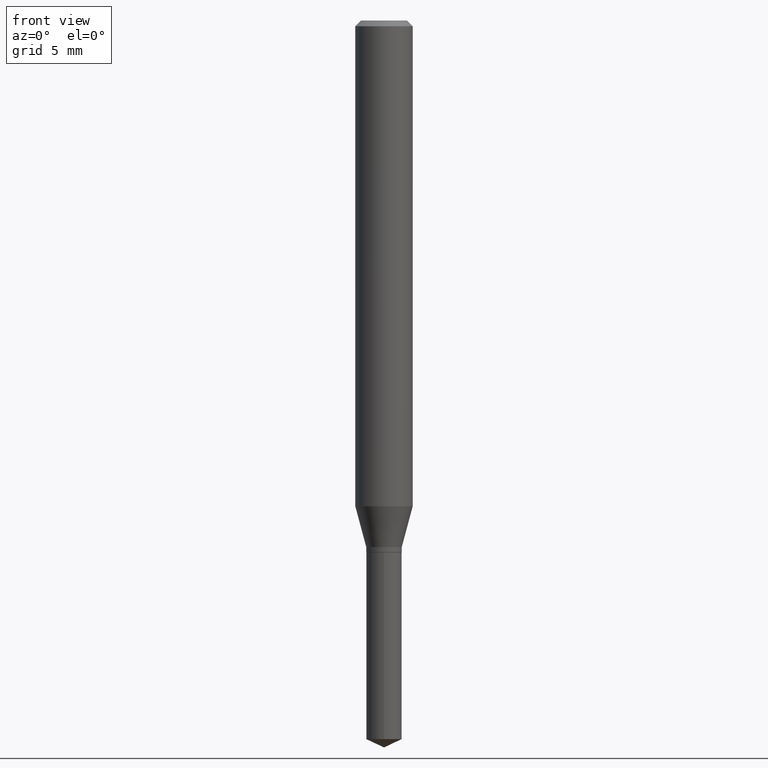
[diagram: clean part render]
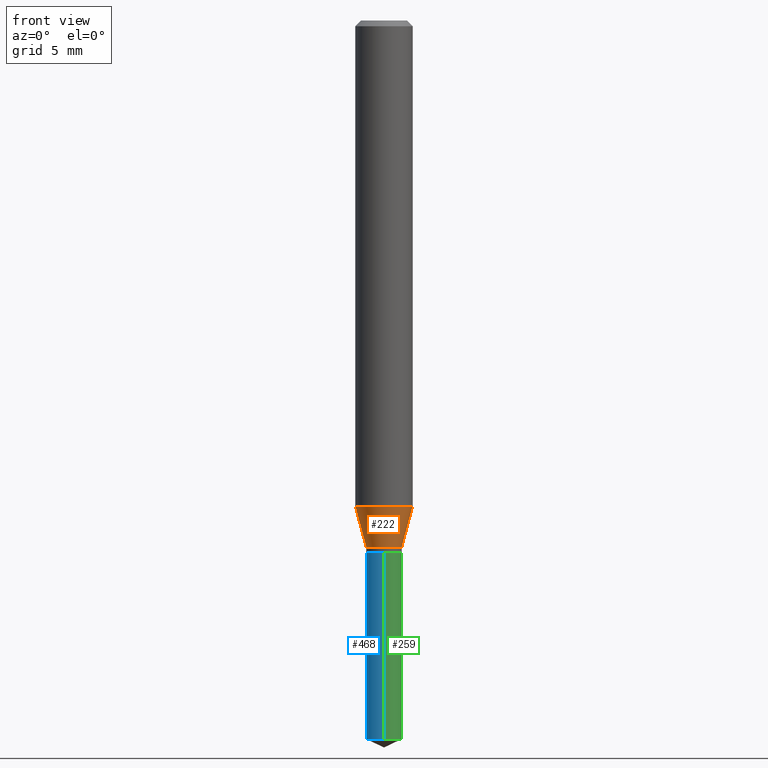
[diagram: same view with three faces highlighted in distinct colors, each labeled with its STEP entity id]
A machine part, front view with three faces highlighted in distinct colors.
Their STEP definitions:

[orange] entity #222 — the highlighted conical surface has half-angle 15 deg.
#18 = CIRCLE ( 'NONE', #280, 0.05905000000000013016 ) ;
#22 = VERTEX_POINT ( 'NONE', #318 ) ;
#42 = DIRECTION ( 'NONE',  ( 1.000000000000000000, -6.982962677686267499E-15, 0.000000000000000000 ) ) ;
#43 = CARTESIAN_POINT ( 'NONE',  ( 0.03659999999999995202, -4.038596464639864917E-15, -1.083499999999999908 ) ) ;
#70 = CARTESIAN_POINT ( 'NONE',  ( -0.03659999999999995202, -3.522961389348351691E-15, -1.083499999999999908 ) ) ;
#84 = CARTESIAN_POINT ( 'NONE',  ( 2.649665451501595207E-29, -3.783020030636548117E-15, -1.083499999999999908 ) ) ;
#85 = DIRECTION ( 'NONE',  ( 1.000000000000000000, -6.982962677686267499E-15, 0.000000000000000000 ) ) ;
#89 = EDGE_CURVE ( 'NONE', #137, #22, #18, .T. ) ;
#99 = VECTOR ( 'NONE', #166, 39.37007874015747433 ) ;
#105 = VERTEX_POINT ( 'NONE', #223 ) ;
#114 = ORIENTED_EDGE ( 'NONE', *, *, #275, .T. ) ;
#127 = CARTESIAN_POINT ( 'NONE',  ( 2.444772970950570480E-29, -3.490487870543630905E-15, -0.9997154593700782188 ) ) ;
#137 = VERTEX_POINT ( 'NONE', #212 ) ;
#166 = DIRECTION ( 'NONE',  ( 0.2588190451025214611, 1.565188264969621573E-15, 0.9659258262890682012 ) ) ;
#195 = VERTEX_POINT ( 'NONE', #43 ) ;
#197 = DIRECTION ( 'NONE',  ( -2.445468806185136597E-29, 3.491481338843145583E-15, 1.000000000000000000 ) ) ;
#201 = CARTESIAN_POINT ( 'NONE',  ( 0.03659999999999995202, -4.038596464639864917E-15, -1.083499999999999908 ) ) ;
#207 = CIRCLE ( 'NONE', #322, 0.03659999999999995202 ) ;
#212 = CARTESIAN_POINT ( 'NONE',  ( -0.05905000000000013016, -3.070912385077291412E-15, -0.9997154593700782188 ) ) ;
#220 = DIRECTION ( 'NONE',  ( -0.2588190451025214611, 5.211531920934551042E-15, 0.9659258262890682012 ) ) ;
#222 = ADVANCED_FACE ( 'NONE', ( #466 ), #299, .T. ) ;
#223 = CARTESIAN_POINT ( 'NONE',  ( -0.03659999999999995896, -3.541291666377277873E-15, -1.083499999999999908 ) ) ;
#253 = DIRECTION ( 'NONE',  ( 1.000000000000000000, -6.982962677686265133E-15, 0.000000000000000000 ) ) ;
#275 = EDGE_CURVE ( 'NONE', #195, #22, #460, .T. ) ;
#280 = AXIS2_PLACEMENT_3D ( 'NONE', #127, #366, #253 ) ;
#284 = EDGE_LOOP ( 'NONE', ( #363, #388, #114, #395 ) ) ;
#299 = CONICAL_SURFACE ( 'NONE', #384, 0.03659999999999995202, 0.2617993877991501295 ) ;
#314 = DIRECTION ( 'NONE',  ( -2.445468806185136597E-29, 3.491481338843145583E-15, 1.000000000000000000 ) ) ;
#318 = CARTESIAN_POINT ( 'NONE',  ( 0.05905000000000013016, -3.902831816661005825E-15, -0.9997154593700782188 ) ) ;
#322 = AXIS2_PLACEMENT_3D ( 'NONE', #84, #314, #42 ) ;
#349 = EDGE_CURVE ( 'NONE', #105, #137, #409, .T. ) ;
#363 = ORIENTED_EDGE ( 'NONE', *, *, #349, .F. ) ;
#366 = DIRECTION ( 'NONE',  ( -2.445468806185136597E-29, 3.491481338843145583E-15, 1.000000000000000000 ) ) ;
#384 = AXIS2_PLACEMENT_3D ( 'NONE', #390, #197, #85 ) ;
#388 = ORIENTED_EDGE ( 'NONE', *, *, #417, .T. ) ;
#390 = CARTESIAN_POINT ( 'NONE',  ( 2.649665451501595207E-29, -3.783020030636548117E-15, -1.083499999999999908 ) ) ;
#395 = ORIENTED_EDGE ( 'NONE', *, *, #89, .F. ) ;
#408 = VECTOR ( 'NONE', #220, 39.37007874015747433 ) ;
#409 = LINE ( 'NONE', #70, #408 ) ;
#417 = EDGE_CURVE ( 'NONE', #105, #195, #207, .T. ) ;
#460 = LINE ( 'NONE', #201, #99 ) ;
#466 = FACE_OUTER_BOUND ( 'NONE', #284, .T. ) ;

[blue] entity #468 — the highlighted cylindrical surface (edge-blend (fillet) strip) has radius 0.9296 mm, axis along (-0, 0, 1).
#12 = DIRECTION ( 'NONE',  ( -2.445458899330790108E-29, 3.491495526022433599E-15, 1.000000000000000000 ) ) ;
#33 = VECTOR ( 'NONE', #12, 39.37007874015748143 ) ;
#53 = DIRECTION ( 'NONE',  ( -6.982962677686265922E-15, -1.000000000000000000, 3.732032778229867436E-15 ) ) ;
#56 = AXIS2_PLACEMENT_3D ( 'NONE', #352, #77, #180 ) ;
#59 = CARTESIAN_POINT ( 'NONE',  ( -2.555764340032905703E-16, -0.03660000000000382392, -1.094499999999999806 ) ) ;
#74 = CIRCLE ( 'NONE', #56, 0.03660000000000000059 ) ;
#77 = DIRECTION ( 'NONE',  ( -2.445458899330790108E-29, 3.491495526022433205E-15, 1.000000000000000000 ) ) ;
#79 = VERTEX_POINT ( 'NONE', #59 ) ;
#87 = LINE ( 'NONE', #234, #33 ) ;
#104 = EDGE_CURVE ( 'NONE', #246, #79, #74, .T. ) ;
#123 = AXIS2_PLACEMENT_3D ( 'NONE', #293, #257, #288 ) ;
#157 = CARTESIAN_POINT ( 'NONE',  ( 2.600586412882233949E-16, 0.03659999999999618420, -1.094500000000000028 ) ) ;
#163 = EDGE_CURVE ( 'NONE', #464, #419, #331, .T. ) ;
#180 = DIRECTION ( 'NONE',  ( -6.982962677686265922E-15, -1.000000000000000000, 3.732032778229867436E-15 ) ) ;
#185 = ORIENTED_EDGE ( 'NONE', *, *, #163, .T. ) ;
#190 = ORIENTED_EDGE ( 'NONE', *, *, #104, .F. ) ;
#203 = LINE ( 'NONE', #157, #429 ) ;
#231 = CARTESIAN_POINT ( 'NONE',  ( 2.600586412882328612E-16, 0.03659999999999483805, -1.479033139711527056 ) ) ;
#234 = CARTESIAN_POINT ( 'NONE',  ( -2.555764340032905703E-16, -0.03660000000000382392, -1.094499999999999806 ) ) ;
#246 = VERTEX_POINT ( 'NONE', #425 ) ;
#249 = EDGE_CURVE ( 'NONE', #419, #79, #87, .T. ) ;
#257 = DIRECTION ( 'NONE',  ( -2.445458899330790108E-29, 3.491495526022433205E-15, 1.000000000000000000 ) ) ;
#269 = FACE_OUTER_BOUND ( 'NONE', #455, .T. ) ;
#278 = CARTESIAN_POINT ( 'NONE',  ( -2.555764340032811533E-16, -0.03660000000000517006, -1.479033139711527056 ) ) ;
#288 = DIRECTION ( 'NONE',  ( -6.982962677686265922E-15, -1.000000000000000000, 0.000000000000000000 ) ) ;
#293 = CARTESIAN_POINT ( 'NONE',  ( 3.616925596964795677E-29, -5.164022062273977810E-15, -1.479033139711527056 ) ) ;
#296 = ORIENTED_EDGE ( 'NONE', *, *, #249, .T. ) ;
#331 = CIRCLE ( 'NONE', #123, 0.03660000000000000059 ) ;
#352 = CARTESIAN_POINT ( 'NONE',  ( 2.676565608369631794E-29, -3.821426325363822773E-15, -1.094499999999999806 ) ) ;
#353 = CYLINDRICAL_SURFACE ( 'NONE', #422, 0.03660000000000000059 ) ;
#399 = CARTESIAN_POINT ( 'NONE',  ( 2.676565608369631794E-29, -3.821426325363822773E-15, -1.094499999999999806 ) ) ;
#419 = VERTEX_POINT ( 'NONE', #278 ) ;
#422 = AXIS2_PLACEMENT_3D ( 'NONE', #399, #432, #53 ) ;
#425 = CARTESIAN_POINT ( 'NONE',  ( 2.600586412882328119E-16, 0.03659999999999617726, -1.094500000000000028 ) ) ;
#429 = VECTOR ( 'NONE', #457, 39.37007874015748143 ) ;
#432 = DIRECTION ( 'NONE',  ( -2.445458899330790108E-29, 3.491495526022433205E-15, 1.000000000000000000 ) ) ;
#455 = EDGE_LOOP ( 'NONE', ( #458, #185, #296, #190 ) ) ;
#457 = DIRECTION ( 'NONE',  ( -2.445458899330790108E-29, 3.491495526022433599E-15, 1.000000000000000000 ) ) ;
#458 = ORIENTED_EDGE ( 'NONE', *, *, #463, .F. ) ;
#463 = EDGE_CURVE ( 'NONE', #464, #246, #203, .T. ) ;
#464 = VERTEX_POINT ( 'NONE', #231 ) ;
#468 = ADVANCED_FACE ( 'NONE', ( #269 ), #353, .T. ) ;

[green] entity #259 — the highlighted cylindrical surface (edge-blend (fillet) strip) has radius 0.9296 mm, axis along (-0, 0, 1).
#4 = CARTESIAN_POINT ( 'NONE',  ( 2.676565608369631794E-29, -3.821426325363822773E-15, -1.094499999999999806 ) ) ;
#12 = DIRECTION ( 'NONE',  ( -2.445458899330790108E-29, 3.491495526022433599E-15, 1.000000000000000000 ) ) ;
#23 = EDGE_CURVE ( 'NONE', #79, #246, #485, .T. ) ;
#33 = VECTOR ( 'NONE', #12, 39.37007874015748143 ) ;
#54 = DIRECTION ( 'NONE',  ( -6.982962677686265922E-15, -1.000000000000000000, 3.732032778229867436E-15 ) ) ;
#59 = CARTESIAN_POINT ( 'NONE',  ( -2.555764340032905703E-16, -0.03660000000000382392, -1.094499999999999806 ) ) ;
#79 = VERTEX_POINT ( 'NONE', #59 ) ;
#87 = LINE ( 'NONE', #234, #33 ) ;
#90 = FACE_OUTER_BOUND ( 'NONE', #489, .T. ) ;
#91 = ORIENTED_EDGE ( 'NONE', *, *, #249, .F. ) ;
#157 = CARTESIAN_POINT ( 'NONE',  ( 2.600586412882233949E-16, 0.03659999999999618420, -1.094500000000000028 ) ) ;
#158 = DIRECTION ( 'NONE',  ( -2.445458899330790108E-29, 3.491495526022433205E-15, 1.000000000000000000 ) ) ;
#169 = EDGE_CURVE ( 'NONE', #419, #464, #453, .T. ) ;
#193 = ORIENTED_EDGE ( 'NONE', *, *, #169, .T. ) ;
#203 = LINE ( 'NONE', #157, #429 ) ;
#221 = CARTESIAN_POINT ( 'NONE',  ( 3.616925596964795677E-29, -5.164022062273977810E-15, -1.479033139711527056 ) ) ;
#231 = CARTESIAN_POINT ( 'NONE',  ( 2.600586412882328612E-16, 0.03659999999999483805, -1.479033139711527056 ) ) ;
#234 = CARTESIAN_POINT ( 'NONE',  ( -2.555764340032905703E-16, -0.03660000000000382392, -1.094499999999999806 ) ) ;
#236 = CYLINDRICAL_SURFACE ( 'NONE', #428, 0.03660000000000000059 ) ;
#246 = VERTEX_POINT ( 'NONE', #425 ) ;
#249 = EDGE_CURVE ( 'NONE', #419, #79, #87, .T. ) ;
#254 = DIRECTION ( 'NONE',  ( -6.982962677686265922E-15, -1.000000000000000000, 0.000000000000000000 ) ) ;
#259 = ADVANCED_FACE ( 'NONE', ( #90 ), #236, .T. ) ;
#278 = CARTESIAN_POINT ( 'NONE',  ( -2.555764340032811533E-16, -0.03660000000000517006, -1.479033139711527056 ) ) ;
#336 = ORIENTED_EDGE ( 'NONE', *, *, #463, .T. ) ;
#338 = AXIS2_PLACEMENT_3D ( 'NONE', #221, #448, #254 ) ;
#350 = CARTESIAN_POINT ( 'NONE',  ( 2.676565608369631794E-29, -3.821426325363822773E-15, -1.094499999999999806 ) ) ;
#367 = AXIS2_PLACEMENT_3D ( 'NONE', #350, #467, #54 ) ;
#394 = DIRECTION ( 'NONE',  ( -6.982962677686265922E-15, -1.000000000000000000, 3.732032778229867436E-15 ) ) ;
#419 = VERTEX_POINT ( 'NONE', #278 ) ;
#425 = CARTESIAN_POINT ( 'NONE',  ( 2.600586412882328119E-16, 0.03659999999999617726, -1.094500000000000028 ) ) ;
#428 = AXIS2_PLACEMENT_3D ( 'NONE', #4, #158, #394 ) ;
#429 = VECTOR ( 'NONE', #457, 39.37007874015748143 ) ;
#448 = DIRECTION ( 'NONE',  ( -2.445458899330790108E-29, 3.491495526022433205E-15, 1.000000000000000000 ) ) ;
#453 = CIRCLE ( 'NONE', #338, 0.03660000000000000059 ) ;
#457 = DIRECTION ( 'NONE',  ( -2.445458899330790108E-29, 3.491495526022433599E-15, 1.000000000000000000 ) ) ;
#463 = EDGE_CURVE ( 'NONE', #464, #246, #203, .T. ) ;
#464 = VERTEX_POINT ( 'NONE', #231 ) ;
#467 = DIRECTION ( 'NONE',  ( -2.445458899330790108E-29, 3.491495526022433205E-15, 1.000000000000000000 ) ) ;
#478 = ORIENTED_EDGE ( 'NONE', *, *, #23, .F. ) ;
#485 = CIRCLE ( 'NONE', #367, 0.03660000000000000059 ) ;
#489 = EDGE_LOOP ( 'NONE', ( #193, #336, #478, #91 ) ) ;